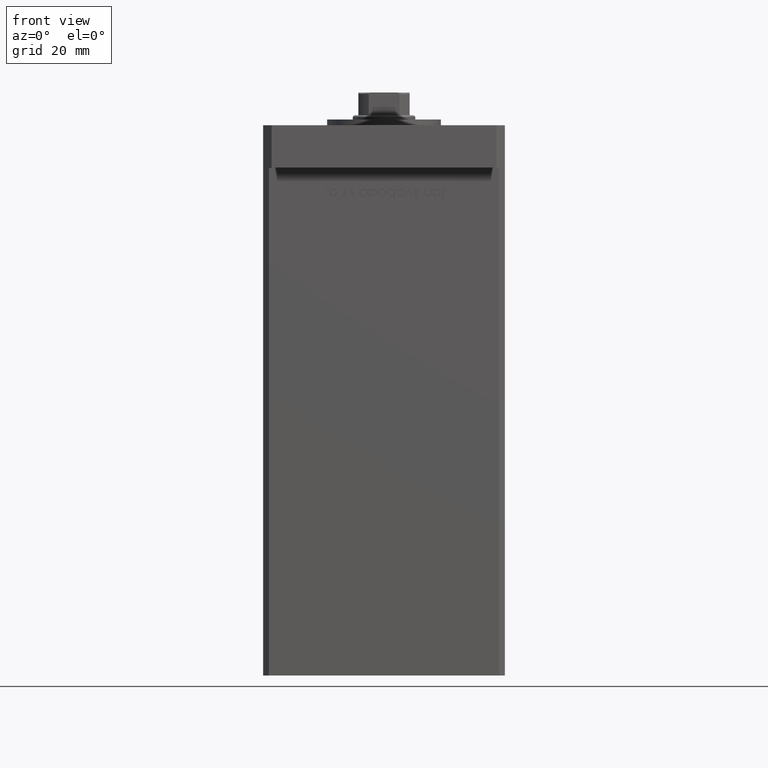
[diagram: clean part render]
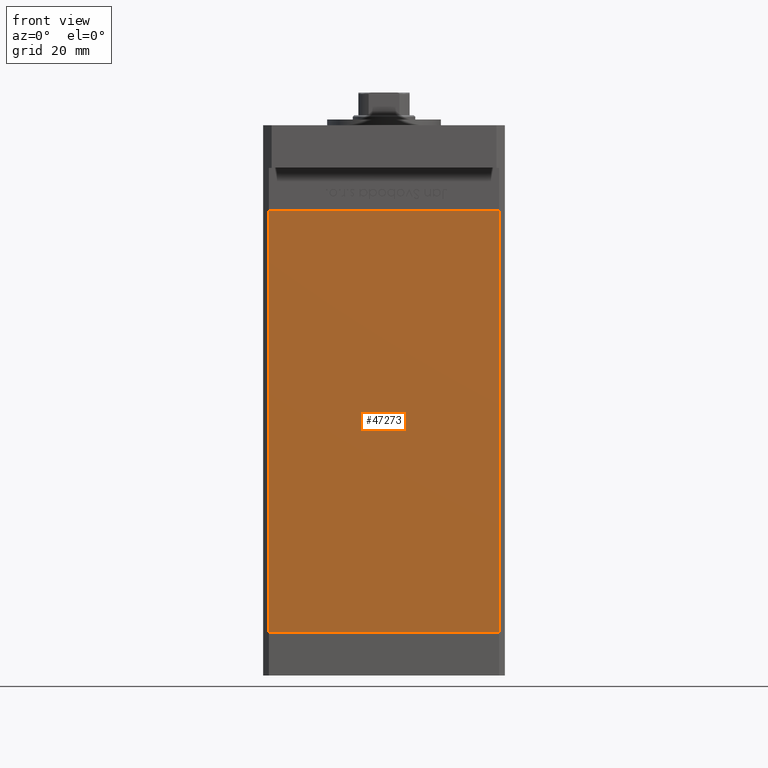
[diagram: same view with one face highlighted and labeled with its STEP entity id]
A machine part, front view. The second image highlights one B-rep face of the part: STEP entity #47273.
In plain terms, the highlighted planar face has unit normal (0, 1, 0).
Its self-contained STEP definition (entity closure, byte-faithful):
#92 = VECTOR ( 'NONE', #11942, 1000.000000000000000 ) ;
#170 = ORIENTED_EDGE ( 'NONE', *, *, #24260, .F. ) ;
#858 = EDGE_CURVE ( 'NONE', #12653, #963, #8665, .T. ) ;
#963 = VERTEX_POINT ( 'NONE', #49597 ) ;
#3214 = VERTEX_POINT ( 'NONE', #20359 ) ;
#4080 = FACE_OUTER_BOUND ( 'NONE', #6615, .T. ) ;
#4153 = LINE ( 'NONE', #37216, #51609 ) ;
#6615 = EDGE_LOOP ( 'NONE', ( #7464, #170, #46262, #36881 ) ) ;
#7464 = ORIENTED_EDGE ( 'NONE', *, *, #858, .T. ) ;
#8665 = LINE ( 'NONE', #33602, #92 ) ;
#11942 = DIRECTION ( 'NONE',  ( 1.000000000000000000, 0.000000000000000000, 0.000000000000000000 ) ) ;
#12653 = VERTEX_POINT ( 'NONE', #48436 ) ;
#17801 = CARTESIAN_POINT ( 'NONE',  ( -40.49999999999998579, -37.50000000000000711, 148.5000000000000000 ) ) ;
#19818 = VERTEX_POINT ( 'NONE', #40243 ) ;
#20359 = CARTESIAN_POINT ( 'NONE',  ( -40.49999999999998579, -37.50000000000000711, 148.5000000000000000 ) ) ;
#21855 = EDGE_CURVE ( 'NONE', #3214, #12653, #33225, .T. ) ;
#24260 = EDGE_CURVE ( 'NONE', #19818, #963, #4153, .T. ) ;
#25947 = DIRECTION ( 'NONE',  ( 1.000000000000000000, 0.000000000000000000, 0.000000000000000000 ) ) ;
#28545 = DIRECTION ( 'NONE',  ( -0.000000000000000000, -0.000000000000000000, -1.000000000000000000 ) ) ;
#29950 = CARTESIAN_POINT ( 'NONE',  ( -40.49999999999998579, -37.50000000000000711, 148.5000000000000000 ) ) ;
#33225 = LINE ( 'NONE', #29950, #44673 ) ;
#33602 = CARTESIAN_POINT ( 'NONE',  ( -40.49999999999998579, -37.50000000000000711, 0.000000000000000000 ) ) ;
#36353 = DIRECTION ( 'NONE',  ( 0.000000000000000000, 1.000000000000000000, 0.000000000000000000 ) ) ;
#36622 = CARTESIAN_POINT ( 'NONE',  ( -40.49999999999998579, -37.50000000000000711, 148.5000000000000000 ) ) ;
#36881 = ORIENTED_EDGE ( 'NONE', *, *, #21855, .T. ) ;
#36884 = PLANE ( 'NONE',  #38766 ) ;
#37216 = CARTESIAN_POINT ( 'NONE',  ( 40.49999999999998579, -37.50000000000000711, 148.5000000000000000 ) ) ;
#38766 = AXIS2_PLACEMENT_3D ( 'NONE', #36622, #36353, #40954 ) ;
#38960 = LINE ( 'NONE', #17801, #39596 ) ;
#39596 = VECTOR ( 'NONE', #25947, 1000.000000000000000 ) ;
#40243 = CARTESIAN_POINT ( 'NONE',  ( 40.49999999999998579, -37.50000000000000711, 148.5000000000000000 ) ) ;
#40954 = DIRECTION ( 'NONE',  ( 0.000000000000000000, -0.000000000000000000, 1.000000000000000000 ) ) ;
#42766 = EDGE_CURVE ( 'NONE', #3214, #19818, #38960, .T. ) ;
#44673 = VECTOR ( 'NONE', #49767, 1000.000000000000000 ) ;
#46262 = ORIENTED_EDGE ( 'NONE', *, *, #42766, .F. ) ;
#47273 = ADVANCED_FACE ( 'NONE', ( #4080 ), #36884, .F. ) ;
#48436 = CARTESIAN_POINT ( 'NONE',  ( -40.49999999999998579, -37.50000000000000711, 0.000000000000000000 ) ) ;
#49597 = CARTESIAN_POINT ( 'NONE',  ( 40.49999999999998579, -37.50000000000000711, 0.000000000000000000 ) ) ;
#49767 = DIRECTION ( 'NONE',  ( -0.000000000000000000, -0.000000000000000000, -1.000000000000000000 ) ) ;
#51609 = VECTOR ( 'NONE', #28545, 1000.000000000000000 ) ;